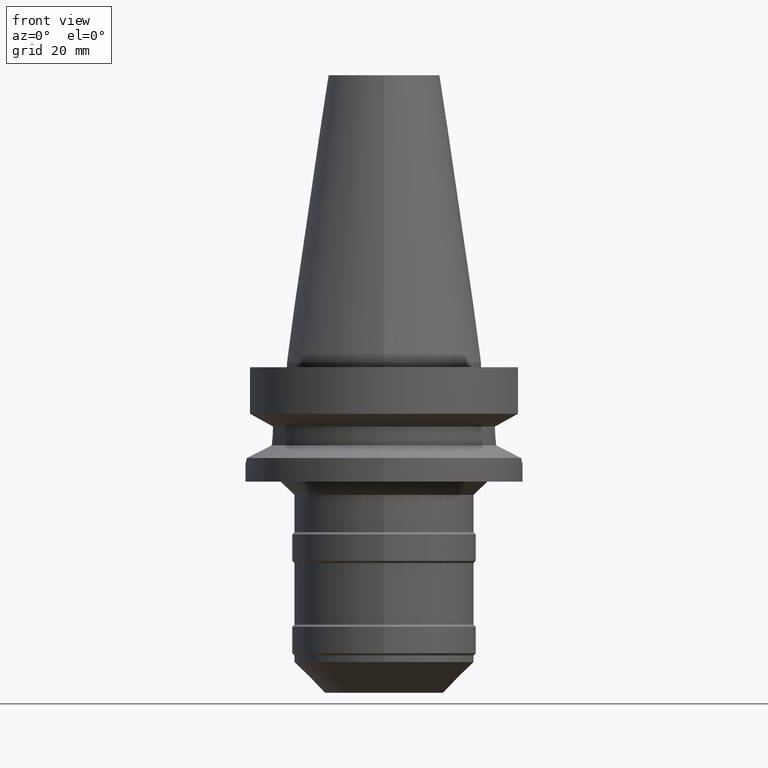
[diagram: clean part render]
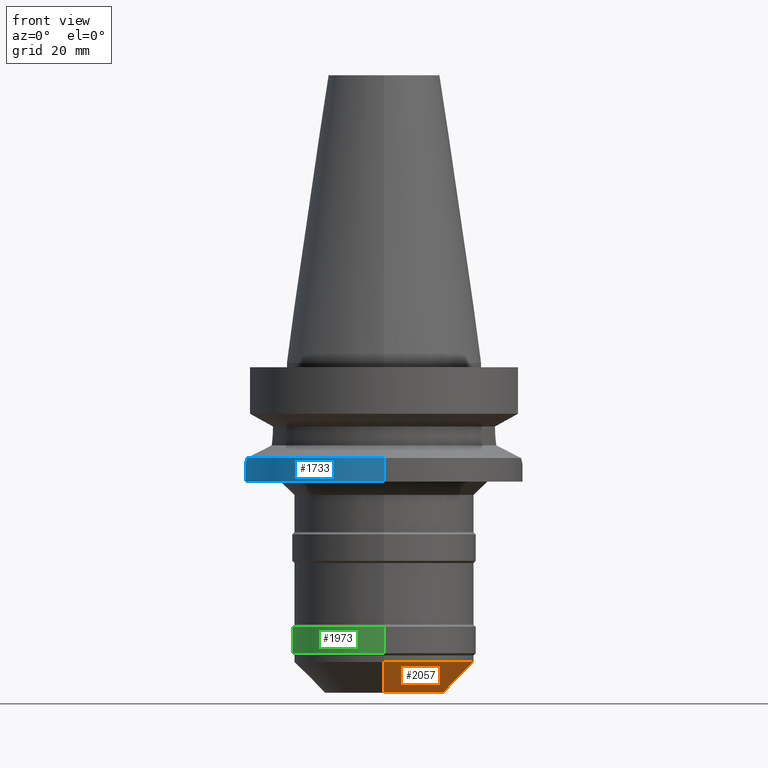
[diagram: same view with three faces highlighted in distinct colors, each labeled with its STEP entity id]
A machine part, front view with three faces highlighted in distinct colors.
Their STEP definitions:

[orange] entity #2057 — the highlighted conical surface has half-angle 45 deg.
#952=DIRECTION('',(0.E0,7.071067811865E-1,-7.071067811865E-1));
#953=VECTOR('',#952,9.899494936612E0);
#954=CARTESIAN_POINT('',(0.E0,-2.05E1,-6.8E1));
#955=LINE('',#954,#953);
#959=DIRECTION('',(0.E0,-7.071067811865E-1,-7.071067811865E-1));
#960=VECTOR('',#959,9.899494936612E0);
#961=CARTESIAN_POINT('',(0.E0,2.05E1,-6.8E1));
#962=LINE('',#961,#960);
#966=CARTESIAN_POINT('',(0.E0,0.E0,-6.8E1));
#967=DIRECTION('',(0.E0,0.E0,1.E0));
#968=DIRECTION('',(0.E0,-1.E0,0.E0));
#969=AXIS2_PLACEMENT_3D('',#966,#967,#968);
#974=CARTESIAN_POINT('',(0.E0,0.E0,-7.5E1));
#975=DIRECTION('',(0.E0,0.E0,1.E0));
#976=DIRECTION('',(0.E0,-1.E0,0.E0));
#977=AXIS2_PLACEMENT_3D('',#974,#975,#976);
#1174=CARTESIAN_POINT('',(0.E0,-1.35E1,-7.5E1));
#1175=CARTESIAN_POINT('',(0.E0,1.35E1,-7.5E1));
#1176=VERTEX_POINT('',#1174);
#1177=VERTEX_POINT('',#1175);
#1178=CARTESIAN_POINT('',(0.E0,2.05E1,-6.8E1));
#1179=VERTEX_POINT('',#1178);
#1180=CARTESIAN_POINT('',(0.E0,-2.05E1,-6.8E1));
#1181=VERTEX_POINT('',#1180);
#2045=CARTESIAN_POINT('',(0.E0,0.E0,-7.15E1));
#2046=DIRECTION('',(0.E0,0.E0,1.E0));
#2047=DIRECTION('',(0.E0,1.E0,0.E0));
#2048=AXIS2_PLACEMENT_3D('',#2045,#2046,#2047);
#2049=CONICAL_SURFACE('',#2048,1.7E1,4.5E1);
#2050=ORIENTED_EDGE('',*,*,#2035,.T.);
#2052=ORIENTED_EDGE('',*,*,#2051,.F.);
#2053=ORIENTED_EDGE('',*,*,#2038,.F.);
#2054=ORIENTED_EDGE('',*,*,#2009,.T.);
#2055=EDGE_LOOP('',(#2050,#2052,#2053,#2054));
#2056=FACE_OUTER_BOUND('',#2055,.F.);
#970=CIRCLE('',#969,2.05E1);
#978=CIRCLE('',#977,1.35E1);
#2009=EDGE_CURVE('',#1181,#1179,#970,.T.);
#2035=EDGE_CURVE('',#1179,#1177,#962,.T.);
#2038=EDGE_CURVE('',#1181,#1176,#955,.T.);
#2051=EDGE_CURVE('',#1176,#1177,#978,.T.);
#2057=ADVANCED_FACE('',(#2056),#2049,.T.);

[blue] entity #1733 — the highlighted cylindrical surface (partial cylindrical patch) has radius 31.5 mm, axis along (0, 0, -1).
#444=CARTESIAN_POINT('',(-3.117899877609E1,4.485536235554E0,-2.163449434733E1));
#470=CARTESIAN_POINT('',(-3.117899877609E1,-4.485536235554E0,
-2.163449434733E1));
#505=CARTESIAN_POINT('',(0.E0,0.E0,-2.163449434733E1));
#506=DIRECTION('',(0.E0,0.E0,-1.E0));
#507=DIRECTION('',(0.E0,-1.E0,0.E0));
#508=AXIS2_PLACEMENT_3D('',#505,#506,#507);
#558=DIRECTION('',(0.E0,1.099151708819E-13,-1.E0));
#559=VECTOR('',#558,5.365505652669E0);
#560=CARTESIAN_POINT('',(0.E0,3.15E1,-2.163449434733E1));
#561=LINE('',#560,#559);
#565=CARTESIAN_POINT('',(0.E0,0.E0,-2.163449434733E1));
#566=DIRECTION('',(0.E0,0.E0,-1.E0));
#567=DIRECTION('',(-9.898094849553E-1,1.423979757319E-1,0.E0));
#568=AXIS2_PLACEMENT_3D('',#565,#566,#567);
#608=CARTESIAN_POINT('',(-3.117899877609E1,4.485536235554E0,-2.163449434733E1));
#609=CARTESIAN_POINT('',(-3.124423357807E1,4.032088597557E0,-2.193877402886E1));
#610=CARTESIAN_POINT('',(-3.135971202356E1,3.088611271775E0,-2.243951042619E1));
#611=CARTESIAN_POINT('',(-3.147335039534E1,1.577609785902E0,-2.289666088953E1));
#612=CARTESIAN_POINT('',(-3.151358178442E1,-1.104147912503E-2,
-2.305267738941E1));
#613=CARTESIAN_POINT('',(-3.147231200138E1,-1.596340580356E0,
-2.289259003373E1));
#614=CARTESIAN_POINT('',(-3.135844480018E1,-3.099975252075E0,
-2.243419198236E1));
#615=CARTESIAN_POINT('',(-3.124366543948E1,-4.036037733524E0,
-2.193612401652E1));
#616=CARTESIAN_POINT('',(-3.117899877609E1,-4.485536235554E0,
-2.163449434733E1));
#621=DIRECTION('',(0.E0,-1.105773104655E-13,-1.E0));
#622=VECTOR('',#621,5.365505652669E0);
#623=CARTESIAN_POINT('',(0.E0,-3.15E1,-2.163449434733E1));
#624=LINE('',#623,#622);
#636=CARTESIAN_POINT('',(0.E0,2.111536011090E-14,-2.7E1));
#637=DIRECTION('',(0.E0,0.E0,1.E0));
#638=DIRECTION('',(0.E0,1.E0,0.E0));
#639=AXIS2_PLACEMENT_3D('',#636,#637,#638);
#1222=CARTESIAN_POINT('',(0.E0,-3.15E1,-2.7E1));
#1223=CARTESIAN_POINT('',(0.E0,3.15E1,-2.7E1));
#1224=VERTEX_POINT('',#1222);
#1225=VERTEX_POINT('',#1223);
#1229=CARTESIAN_POINT('',(0.E0,3.15E1,-2.163449434733E1));
#1230=VERTEX_POINT('',#1229);
#1231=CARTESIAN_POINT('',(0.E0,-3.15E1,-2.163449434733E1));
#1232=VERTEX_POINT('',#1231);
#1244=VERTEX_POINT('',#470);
#1248=VERTEX_POINT('',#444);
#1719=CARTESIAN_POINT('',(0.E0,2.111536011090E-14,7.242E1));
#1720=DIRECTION('',(0.E0,0.E0,-1.E0));
#1721=DIRECTION('',(0.E0,-1.E0,0.E0));
#1722=AXIS2_PLACEMENT_3D('',#1719,#1720,#1721);
#1723=CYLINDRICAL_SURFACE('',#1722,3.15E1);
#1724=ORIENTED_EDGE('',*,*,#1634,.T.);
#1725=ORIENTED_EDGE('',*,*,#1659,.F.);
#1726=ORIENTED_EDGE('',*,*,#1698,.T.);
#1728=ORIENTED_EDGE('',*,*,#1727,.F.);
#1729=ORIENTED_EDGE('',*,*,#1694,.F.);
#1730=ORIENTED_EDGE('',*,*,#1710,.F.);
#1731=EDGE_LOOP('',(#1724,#1725,#1726,#1728,#1729,#1730));
#1732=FACE_OUTER_BOUND('',#1731,.F.);
#509=CIRCLE('',#508,3.15E1);
#569=CIRCLE('',#568,3.15E1);
#617=B_SPLINE_CURVE_WITH_KNOTS('',3,(#608,#609,#610,#611,#612,#613,#614,#615,
#616),.UNSPECIFIED.,.F.,.F.,(4,1,1,1,1,1,4),(0.E0,1.666666666667E-1,
3.333333333333E-1,5.E-1,6.666666666667E-1,8.333333333333E-1,1.E0),
.UNSPECIFIED.);
#640=CIRCLE('',#639,3.15E1);
#1634=EDGE_CURVE('',#1248,#1244,#617,.T.);
#1659=EDGE_CURVE('',#1232,#1244,#509,.T.);
#1694=EDGE_CURVE('',#1230,#1225,#561,.T.);
#1698=EDGE_CURVE('',#1232,#1224,#624,.T.);
#1710=EDGE_CURVE('',#1248,#1230,#569,.T.);
#1727=EDGE_CURVE('',#1225,#1224,#640,.T.);
#1733=ADVANCED_FACE('',(#1732),#1723,.T.);

[green] entity #1973 — the highlighted cylindrical surface (partial cylindrical patch) has radius 21 mm, axis along (0, 0, -1).
#839=CARTESIAN_POINT('',(0.E0,0.E0,-6.E1));
#840=DIRECTION('',(0.E0,0.E0,-1.E0));
#841=DIRECTION('',(0.E0,-1.E0,0.E0));
#842=AXIS2_PLACEMENT_3D('',#839,#840,#841);
#870=DIRECTION('',(0.E0,0.E0,-1.E0));
#871=VECTOR('',#870,6.E0);
#872=CARTESIAN_POINT('',(0.E0,2.1E1,-6.E1));
#873=LINE('',#872,#871);
#877=DIRECTION('',(0.E0,0.E0,-1.E0));
#878=VECTOR('',#877,6.E0);
#879=CARTESIAN_POINT('',(0.E0,-2.1E1,-6.E1));
#880=LINE('',#879,#878);
#884=CARTESIAN_POINT('',(0.E0,0.E0,-6.6E1));
#885=DIRECTION('',(0.E0,0.E0,1.E0));
#886=DIRECTION('',(0.E0,1.E0,0.E0));
#887=AXIS2_PLACEMENT_3D('',#884,#885,#886);
#1186=CARTESIAN_POINT('',(0.E0,2.1E1,-6.6E1));
#1187=VERTEX_POINT('',#1186);
#1188=CARTESIAN_POINT('',(0.E0,-2.1E1,-6.6E1));
#1189=VERTEX_POINT('',#1188);
#1190=CARTESIAN_POINT('',(0.E0,2.1E1,-6.E1));
#1191=VERTEX_POINT('',#1190);
#1192=CARTESIAN_POINT('',(0.E0,-2.1E1,-6.E1));
#1193=VERTEX_POINT('',#1192);
#1961=CARTESIAN_POINT('',(0.E0,2.111536011090E-14,7.242E1));
#1962=DIRECTION('',(0.E0,0.E0,-1.E0));
#1963=DIRECTION('',(0.E0,-1.E0,0.E0));
#1964=AXIS2_PLACEMENT_3D('',#1961,#1962,#1963);
#1965=CYLINDRICAL_SURFACE('',#1964,2.1E1);
#1966=ORIENTED_EDGE('',*,*,#1951,.F.);
#1967=ORIENTED_EDGE('',*,*,#1928,.F.);
#1968=ORIENTED_EDGE('',*,*,#1955,.T.);
#1970=ORIENTED_EDGE('',*,*,#1969,.F.);
#1971=EDGE_LOOP('',(#1966,#1967,#1968,#1970));
#1972=FACE_OUTER_BOUND('',#1971,.F.);
#843=CIRCLE('',#842,2.1E1);
#888=CIRCLE('',#887,2.1E1);
#1928=EDGE_CURVE('',#1193,#1191,#843,.T.);
#1951=EDGE_CURVE('',#1191,#1187,#873,.T.);
#1955=EDGE_CURVE('',#1193,#1189,#880,.T.);
#1969=EDGE_CURVE('',#1187,#1189,#888,.T.);
#1973=ADVANCED_FACE('',(#1972),#1965,.T.);